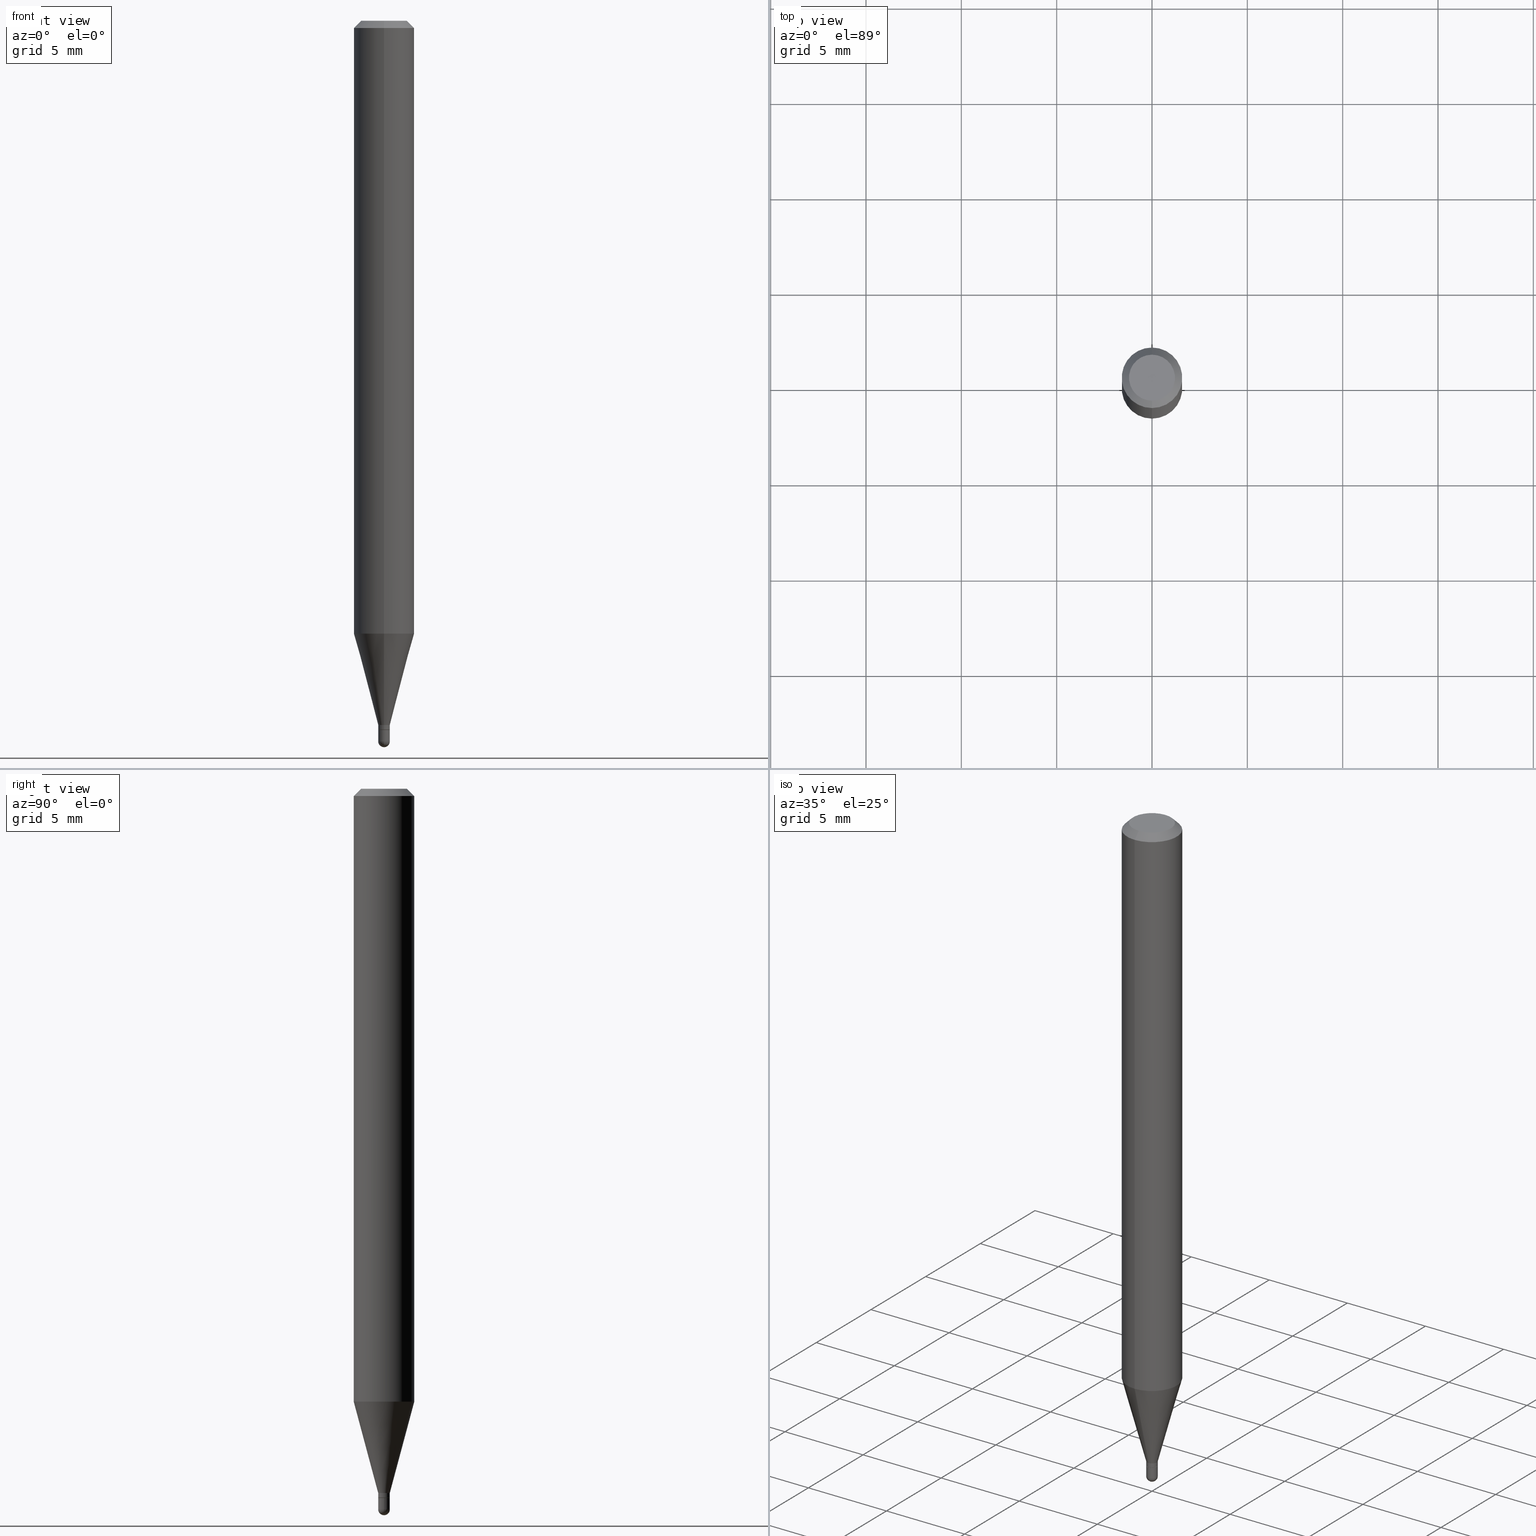
[diagram: canonical four-view strip — front | top / right | iso, engineering-drawing reading convention]
A machine part, canonical four-view strip (front | top / right | iso — engineering-drawing reading convention). The complete STEP part file that produces these views, byte-faithful:
ISO-10303-21;
HEADER;
FILE_DESCRIPTION (( 'STEP AP203' ),
    '1' );
FILE_NAME ('03085.STEP',
    '2024-03-08T18:08:15',
    ( '' ),
    ( '' ),
    'SwSTEP 2.0',
    'SolidWorks 2023',
    '' );
FILE_SCHEMA (( 'CONFIG_CONTROL_DESIGN' ));
ENDSEC;

DATA;
#1 = PRODUCT_DEFINITION_FORMATION_WITH_SPECIFIED_SOURCE ( 'ANY', '', #431, .NOT_KNOWN. ) ;
#2 = DIRECTION ( 'NONE',  ( -2.445468806185136597E-29, 3.491481338843145583E-15, 1.000000000000000000 ) ) ;
#3 = ORIENTED_EDGE ( 'NONE', *, *, #5, .T. ) ;
#4 = CYLINDRICAL_SURFACE ( 'NONE', #497, 0.06250000000000000000 ) ;
#5 = EDGE_CURVE ( 'NONE', #10, #282, #305, .T. ) ;
#6 = DIRECTION ( 'NONE',  ( -6.982962677686265922E-15, -1.000000000000000000, 4.370956789862821150E-15 ) ) ;
#7 = EDGE_LOOP ( 'NONE', ( #463, #452, #326, #308 ) ) ;
#8 = DIRECTION ( 'NONE',  ( -2.445468806185136877E-29, 3.491481338843145188E-15, 1.000000000000000000 ) ) ;
#9 = DIRECTION ( 'NONE',  ( -6.982962677686266711E-15, -1.000000000000000000, 0.000000000000000000 ) ) ;
#10 = VERTEX_POINT ( 'NONE', #510 ) ;
#11 = CARTESIAN_POINT ( 'NONE',  ( 3.637831384056468447E-29, -5.196793808357578073E-15, -1.487999999999999989 ) ) ;
#12 = FACE_OUTER_BOUND ( 'NONE', #222, .T. ) ;
#13 = CIRCLE ( 'NONE', #26, 0.01200000000000000198 ) ;
#14 = ADVANCED_FACE ( 'NONE', ( #193 ), #261, .F. ) ;
#15 = CARTESIAN_POINT ( 'NONE',  ( 3.555703072272141171E-29, -5.076626142156755697E-15, -1.453999999999999737 ) ) ;
#16 = CARTESIAN_POINT ( 'NONE',  ( -8.379555213219910077E-17, -0.01200000000000499972, -1.453999999999999737 ) ) ;
#17 = ORIENTED_EDGE ( 'NONE', *, *, #160, .F. ) ;
#18 = CARTESIAN_POINT ( 'NONE',  ( 3.578934969924538855E-29, -5.109795295080065026E-15, -1.463500000000000023 ) ) ;
#19 = CARTESIAN_POINT ( 'NONE',  ( 3.578934969924538855E-29, -5.109795295080065026E-15, -1.463500000000000023 ) ) ;
#20 = VERTEX_POINT ( 'NONE', #469 ) ;
#21 = DIRECTION ( 'NONE',  ( 1.000000000000000000, -6.982962677686251722E-15, 0.000000000000000000 ) ) ;
#22 = APPROVAL ( #72, 'UNSPECIFIED' ) ;
#23 = CARTESIAN_POINT ( 'NONE',  ( 3.668194366167900460E-31, -5.237234672101109478E-17, -0.01499999999999976179 ) ) ;
#24 = CARTESIAN_POINT ( 'NONE',  ( 0.01200000000000000025, -5.195324232198600513E-15, -1.463999999999999968 ) ) ;
#25 = CALENDAR_DATE ( 2024, 8, 3 ) ;
#26 = AXIS2_PLACEMENT_3D ( 'NONE', #325, #467, #119 ) ;
#27 = PERSON_AND_ORGANIZATION ( #249, #346 ) ;
#28 = ADVANCED_FACE ( 'NONE', ( #486 ), #319, .T. ) ;
#29 = PERSON_AND_ORGANIZATION_ROLE ( 'design_supplier' ) ;
#30 = ORIENTED_EDGE ( 'NONE', *, *, #407, .T. ) ;
#31 = AXIS2_PLACEMENT_3D ( 'NONE', #11, #158, #316 ) ;
#32 = LOCAL_TIME ( 13, 8, 15.00000000000000000, #104 ) ;
#33 = ORIENTED_EDGE ( 'NONE', *, *, #471, .F. ) ;
#34 = ORIENTED_EDGE ( 'NONE', *, *, #5, .F. ) ;
#35 = DIRECTION ( 'NONE',  ( -2.445462910778639321E-29, 3.491489781400795201E-15, 1.000000000000000000 ) ) ;
#36 = ORIENTED_EDGE ( 'NONE', *, *, #388, .F. ) ;
#37 = DIRECTION ( 'NONE',  ( -6.982962677686265922E-15, -1.000000000000000000, 0.000000000000000000 ) ) ;
#38 = EDGE_CURVE ( 'NONE', #20, #434, #323, .T. ) ;
#39 = CIRCLE ( 'NONE', #456, 0.01200000000000000198 ) ;
#40 = DIRECTION ( 'NONE',  ( -6.982962677686265922E-15, -1.000000000000000000, 3.491489781400795201E-15 ) ) ;
#41 = CARTESIAN_POINT ( 'NONE',  ( 3.637831384056468447E-29, -5.196793808357578073E-15, -1.487999999999999989 ) ) ;
#42 = EDGE_CURVE ( 'NONE', #427, #172, #490, .T. ) ;
#43 = DIRECTION ( 'NONE',  ( -6.982962677686265922E-15, -1.000000000000000000, 3.491489781400795201E-15 ) ) ;
#44 = CARTESIAN_POINT ( 'NONE',  ( 3.638857583603483825E-29, -5.195324232198600513E-15, -1.487999999999999989 ) ) ;
#45 = DIRECTION ( 'NONE',  ( 1.000000000000000000, -6.982962677686265922E-15, 4.883557194083112901E-29 ) ) ;
#46 = ORIENTED_EDGE ( 'NONE', *, *, #284, .F. ) ;
#47 = VECTOR ( 'NONE', #294, 39.37007874015748143 ) ;
#48 = CIRCLE ( 'NONE', #145, 0.06250000000000000000 ) ;
#49 = DIRECTION ( 'NONE',  ( -2.445462910778639602E-29, 3.491489781400795201E-15, 1.000000000000000000 ) ) ;
#50 = ADVANCED_FACE ( 'NONE', ( #203 ), #121, .T. ) ;
#51 = CARTESIAN_POINT ( 'NONE',  ( 3.668194366167900460E-31, -5.237234672101109478E-17, -0.01499999999999976179 ) ) ;
#52 = ORIENTED_EDGE ( 'NONE', *, *, #382, .F. ) ;
#53 = EDGE_CURVE ( 'NONE', #20, #10, #435, .T. ) ;
#54 = VECTOR ( 'NONE', #169, 39.37007874015748143 ) ;
#55 = AXIS2_PLACEMENT_3D ( 'NONE', #507, #424, #306 ) ;
#56 = DIRECTION ( 'NONE',  ( -2.445462910778639321E-29, 3.491489781400795201E-15, 1.000000000000000000 ) ) ;
#57 = CC_DESIGN_PERSON_AND_ORGANIZATION_ASSIGNMENT ( #509, #418, ( #431 ) ) ;
#58 = DIRECTION ( 'NONE',  ( -6.982962677686265922E-15, -1.000000000000000000, 3.483106191921935554E-15 ) ) ;
#59 = SECURITY_CLASSIFICATION_LEVEL ( 'unclassified' ) ;
#60 = EDGE_CURVE ( 'NONE', #489, #355, #278, .T. ) ;
#61 = CIRCLE ( 'NONE', #332, 0.01149999999999999981 ) ;
#62 = CC_DESIGN_SECURITY_CLASSIFICATION ( #155, ( #1 ) ) ;
#63 = DATE_AND_TIME ( #339, #32 ) ;
#64 = ORIENTED_EDGE ( 'NONE', *, *, #53, .F. ) ;
#65 = EDGE_CURVE ( 'NONE', #172, #440, #473, .T. ) ;
#66 =( CONVERSION_BASED_UNIT ( 'INCH', #421 ) LENGTH_UNIT ( ) NAMED_UNIT ( #420 ) );
#67 = ORIENTED_EDGE ( 'NONE', *, *, #160, .T. ) ;
#68 = ORIENTED_EDGE ( 'NONE', *, *, #474, .F. ) ;
#69 = AXIS2_PLACEMENT_3D ( 'NONE', #41, #476, #244 ) ;
#70 = EDGE_CURVE ( 'NONE', #365, #351, #214, .T. ) ;
#71 = CC_DESIGN_APPROVAL ( #287, ( #155 ) ) ;
#72 = APPROVAL_STATUS ( 'not_yet_approved' ) ;
#73 = CARTESIAN_POINT ( 'NONE',  ( 3.316907271900976096E-16, 0.04749999999999999362, -4.610124276185011717E-17 ) ) ;
#74 = COORDINATED_UNIVERSAL_TIME_OFFSET ( 5, 0, .BEHIND. ) ;
#75 = EDGE_CURVE ( 'NONE', #502, #257, #505, .T. ) ;
#76 = CARTESIAN_POINT ( 'NONE',  ( 3.668194366167900460E-31, -5.237234672101109478E-17, -0.01499999999999976179 ) ) ;
#77 = DIRECTION ( 'NONE',  ( -2.445462910778639321E-29, 3.491489781400795201E-15, 1.000000000000000000 ) ) ;
#78 = ORIENTED_EDGE ( 'NONE', *, *, #163, .T. ) ;
#79 = CARTESIAN_POINT ( 'NONE',  ( 3.638857583603483825E-29, -5.195324232198600513E-15, -1.487999999999999989 ) ) ;
#80 = APPLICATION_CONTEXT ( 'configuration controlled 3d designs of mechanical parts and assemblies' ) ;
#81 = CONICAL_SURFACE ( 'NONE', #425, 0.01149999999999999981, 0.7853981633974739252 ) ;
#82 = CARTESIAN_POINT ( 'NONE',  ( 3.555703072272141171E-29, -5.076626142156755697E-15, -1.453999999999999737 ) ) ;
#83 = DIRECTION ( 'NONE',  ( -2.445462910778639321E-29, 3.491489781400795201E-15, 1.000000000000000000 ) ) ;
#84 = DIRECTION ( 'NONE',  ( 6.982962677686265922E-15, 1.000000000000000000, -3.483106191921935554E-15 ) ) ;
#85 = VERTEX_POINT ( 'NONE', #480 ) ;
#86 = CYLINDRICAL_SURFACE ( 'NONE', #154, 0.01200000000000000198 ) ;
#87 = CARTESIAN_POINT ( 'NONE',  ( 3.638857583603483825E-29, -5.195324232198600513E-15, -1.487999999999999989 ) ) ;
#88 = ORIENTED_EDGE ( 'NONE', *, *, #60, .T. ) ;
#89 = DIRECTION ( 'NONE',  ( -1.807323732225329745E-15, -0.2588190451025181305, 0.9659258262890689783 ) ) ;
#90 = CONICAL_SURFACE ( 'NONE', #324, 0.06250000000000000000, 0.7853981633974483900 ) ;
#91 = ORIENTED_EDGE ( 'NONE', *, *, #407, .F. ) ;
#92 = CIRCLE ( 'NONE', #310, 0.06250000000000000000 ) ;
#93 = CARTESIAN_POINT ( 'NONE',  ( 3.666663909957182108E-29, -5.239426372503184123E-15, -1.499999999999999778 ) ) ;
#94 = ADVANCED_FACE ( 'NONE', ( #329 ), #86, .T. ) ;
#95 = DIRECTION ( 'NONE',  ( -6.982962677686265133E-15, -1.000000000000000000, 0.000000000000000000 ) ) ;
#96 = CARTESIAN_POINT ( 'NONE',  ( -4.364351673553606573E-16, -0.06250000000000442701, -1.265531434217771700 ) ) ;
#97 = CYLINDRICAL_SURFACE ( 'NONE', #208, 0.01200000000000000198 ) ;
#98 = CARTESIAN_POINT ( 'NONE',  ( 8.526512829124701746E-17, 0.01199999999999484465, -1.453999999999999737 ) ) ;
#99 = AXIS2_PLACEMENT_3D ( 'NONE', #204, #475, #43 ) ;
#100 = CONICAL_SURFACE ( 'NONE', #386, 0.01199999999999992219, 0.2617993877991502405 ) ;
#101 = DIRECTION ( 'NONE',  ( -2.445468806185136597E-29, 3.491481338843145583E-15, 1.000000000000000000 ) ) ;
#102 = CALENDAR_DATE ( 2024, 8, 3 ) ;
#103 = ADVANCED_FACE ( 'NONE', ( #401 ), #167, .T. ) ;
#104 = COORDINATED_UNIVERSAL_TIME_OFFSET ( 5, 0, .BEHIND. ) ;
#105 = CIRCLE ( 'NONE', #373, 0.01199999999999992219 ) ;
#106 = ORIENTED_EDGE ( 'NONE', *, *, #313, .T. ) ;
#107 = APPROVAL_DATE_TIME ( #464, #350 ) ;
#108 = CC_DESIGN_DATE_AND_TIME_ASSIGNMENT ( #342, #503, ( #149 ) ) ;
#109 = ADVANCED_FACE ( 'NONE', ( #366 ), #4, .T. ) ;
#110 = ORIENTED_EDGE ( 'NONE', *, *, #140, .T. ) ;
#111 = EDGE_CURVE ( 'NONE', #264, #489, #327, .T. ) ;
#112 = EDGE_LOOP ( 'NONE', ( #68, #170, #237, #141 ) ) ;
#113 = PERSON_AND_ORGANIZATION ( #249, #346 ) ;
#114 = ORIENTED_EDGE ( 'NONE', *, *, #376, .F. ) ;
#115 = CLOSED_SHELL ( 'NONE', ( #223, #174, #210, #500, #352, #103, #109, #442, #14, #511, #492, #50 ) ) ;
#116 = DIRECTION ( 'NONE',  ( -2.445462910778639602E-29, 3.491489781400795201E-15, 1.000000000000000000 ) ) ;
#117 = DIRECTION ( 'NONE',  ( -6.982962677686266711E-15, -1.000000000000000000, 3.491489781400794412E-15 ) ) ;
#118 = DIRECTION ( 'NONE',  ( 1.000000000000000000, -7.105427357601001070E-15, 4.926315508542082329E-29 ) ) ;
#119 = DIRECTION ( 'NONE',  ( 1.000000000000000000, -6.982962677686250144E-15, 0.000000000000000000 ) ) ;
#120 = ORIENTED_EDGE ( 'NONE', *, *, #38, .T. ) ;
#121 = CYLINDRICAL_SURFACE ( 'NONE', #394, 0.01199999999999992566 ) ;
#122 = CIRCLE ( 'NONE', #273, 0.01199999999999992566 ) ;
#123 = CIRCLE ( 'NONE', #190, 0.01199999999999992566 ) ;
#124 = DIRECTION ( 'NONE',  ( -2.445468806185136597E-29, 3.491481338843145583E-15, 1.000000000000000000 ) ) ;
#125 = DIRECTION ( 'NONE',  ( 1.000000000000000000, -6.982962677686250144E-15, 0.000000000000000000 ) ) ;
#126 = CARTESIAN_POINT ( 'NONE',  ( 3.580157701379928029E-29, -5.111541039970764852E-15, -1.463999999999999968 ) ) ;
#127 = EDGE_LOOP ( 'NONE', ( #64, #229 ) ) ;
#128 = CARTESIAN_POINT ( 'NONE',  ( -8.030407079335625387E-17, -0.01150000000000511204, -1.463999999999999968 ) ) ;
#129 = LINE ( 'NONE', #135, #498 ) ;
#130 = ORIENTED_EDGE ( 'NONE', *, *, #279, .T. ) ;
#131 = CARTESIAN_POINT ( 'NONE',  ( 0.01200000000000000198, -8.379555213223521581E-17, 5.851412130955123337E-31 ) ) ;
#132 = EDGE_CURVE ( 'NONE', #459, #427, #175, .T. ) ;
#133 = DIRECTION ( 'NONE',  ( 4.937700262164548042E-15, 0.7071067811865451302, -0.7071067811865499042 ) ) ;
#134 = DIRECTION ( 'NONE',  ( -6.982962677686265922E-15, -1.000000000000000000, 0.000000000000000000 ) ) ;
#135 = CARTESIAN_POINT ( 'NONE',  ( 4.364351673553919652E-16, 0.06249999999999995143, -0.01499999999999997863 ) ) ;
#136 = CARTESIAN_POINT ( 'NONE',  ( 4.440892098500932831E-16, 0.06249999999999555911, -1.265531434217772144 ) ) ;
#137 = AXIS2_PLACEMENT_3D ( 'NONE', #15, #286, #206 ) ;
#138 = LOCAL_TIME ( 13, 8, 15.00000000000000000, #260 ) ;
#139 =( NAMED_UNIT ( * ) PLANE_ANGLE_UNIT ( ) SI_UNIT ( $, .RADIAN. ) );
#140 = EDGE_CURVE ( 'NONE', #459, #243, #232, .T. ) ;
#141 = ORIENTED_EDGE ( 'NONE', *, *, #376, .T. ) ;
#142 = PERSON_AND_ORGANIZATION_ROLE ( 'creator' ) ;
#143 = VECTOR ( 'NONE', #173, 39.37007874015748143 ) ;
#144 = ORIENTED_EDGE ( 'NONE', *, *, #483, .T. ) ;
#145 = AXIS2_PLACEMENT_3D ( 'NONE', #51, #455, #58 ) ;
#146 = APPROVAL_ROLE ( '' ) ;
#147 = EDGE_LOOP ( 'NONE', ( #194, #301 ) ) ;
#148 = APPLICATION_CONTEXT ( 'configuration controlled 3d designs of mechanical parts and assemblies' ) ;
#149 = PRODUCT_DEFINITION ( 'UNKNOWN', '', #1, #180 ) ;
#150 = ADVANCED_BREP_SHAPE_REPRESENTATION ( '03085', ( #417, #438, #55 ), #449 ) ;
#151 = ORIENTED_EDGE ( 'NONE', *, *, #132, .T. ) ;
#152 = PERSON_AND_ORGANIZATION ( #249, #346 ) ;
#153 = DIRECTION ( 'NONE',  ( 5.024295867788190974E-15, 0.7071067811865681119, 0.7071067811865270336 ) ) ;
#154 = AXIS2_PLACEMENT_3D ( 'NONE', #238, #241, #162 ) ;
#155 = SECURITY_CLASSIFICATION ( '', '', #59 ) ;
#156 = DIRECTION ( 'NONE',  ( -2.445462910778639321E-29, 3.491489781400795201E-15, 1.000000000000000000 ) ) ;
#157 = EDGE_LOOP ( 'NONE', ( #393, #290 ) ) ;
#158 = DIRECTION ( 'NONE',  ( -1.000000000000000000, 6.982962677686265922E-15, -4.883557194083112340E-29 ) ) ;
#159 = APPROVAL_DATE_TIME ( #197, #287 ) ;
#160 = EDGE_CURVE ( 'NONE', #434, #282, #122, .T. ) ;
#161 = FACE_OUTER_BOUND ( 'NONE', #189, .T. ) ;
#162 = DIRECTION ( 'NONE',  ( 1.000000000000000000, -6.982962677686266711E-15, 4.876176775795935232E-29 ) ) ;
#163 = EDGE_CURVE ( 'NONE', #365, #427, #251, .T. ) ;
#164 = DIRECTION ( 'NONE',  ( -6.982962677686265922E-15, -1.000000000000000000, 0.000000000000000000 ) ) ;
#165 = ORIENTED_EDGE ( 'NONE', *, *, #271, .F. ) ;
#166 = FACE_OUTER_BOUND ( 'NONE', #389, .T. ) ;
#167 = CONICAL_SURFACE ( 'NONE', #137, 0.01199999999999992219, 0.2617993877991502405 ) ;
#168 = CIRCLE ( 'NONE', #357, 0.06250000000000000000 ) ;
#169 = DIRECTION ( 'NONE',  ( -2.445462910778639602E-29, 3.491489781400795201E-15, 1.000000000000000000 ) ) ;
#170 = ORIENTED_EDGE ( 'NONE', *, *, #75, .F. ) ;
#171 = DIRECTION ( 'NONE',  ( -6.982962677686265922E-15, -1.000000000000000000, 3.491489781400795201E-15 ) ) ;
#172 = VERTEX_POINT ( 'NONE', #396 ) ;
#173 = DIRECTION ( 'NONE',  ( -4.937700262164674260E-15, -0.7071067811865632269, 0.7071067811865319186 ) ) ;
#174 = ADVANCED_FACE ( 'NONE', ( #166 ), #81, .T. ) ;
#175 = CIRCLE ( 'NONE', #196, 0.01200000000000000198 ) ;
#176 = FACE_OUTER_BOUND ( 'NONE', #112, .T. ) ;
#177 = AXIS2_PLACEMENT_3D ( 'NONE', #451, #408, #496 ) ;
#178 = EDGE_CURVE ( 'NONE', #349, #485, #494, .T. ) ;
#179 = DIRECTION ( 'NONE',  ( -2.445468806185136597E-29, 3.491481338843145583E-15, 1.000000000000000000 ) ) ;
#180 = DESIGN_CONTEXT ( 'detailed design', #148, 'design' ) ;
#181 = CARTESIAN_POINT ( 'NONE',  ( 3.580166332255040005E-29, -5.111528680066365187E-15, -1.463999999999999968 ) ) ;
#182 = DATE_AND_TIME ( #25, #253 ) ;
#183 = AXIS2_PLACEMENT_3D ( 'NONE', #443, #397, #318 ) ;
#184 = PERSON_AND_ORGANIZATION_ROLE ( 'classification_officer' ) ;
#185 = EDGE_LOOP ( 'NONE', ( #130, #110, #444, #341, #106 ) ) ;
#186 = APPLICATION_PROTOCOL_DEFINITION ( 'international standard', 'config_control_design', 1994, #80 ) ;
#187 = ORIENTED_EDGE ( 'NONE', *, *, #361, .F. ) ;
#188 = PERSON_AND_ORGANIZATION ( #249, #346 ) ;
#189 = EDGE_LOOP ( 'NONE', ( #403, #423, #33, #315 ) ) ;
#190 = AXIS2_PLACEMENT_3D ( 'NONE', #19, #254, #134 ) ;
#191 = CARTESIAN_POINT ( 'NONE',  ( 8.171241461244731456E-17, 0.01149999999999488931, -1.463999999999999968 ) ) ;
#192 = ADVANCED_FACE ( 'NONE', ( #412 ), #307, .F. ) ;
#193 = FACE_OUTER_BOUND ( 'NONE', #147, .T. ) ;
#194 = ORIENTED_EDGE ( 'NONE', *, *, #75, .T. ) ;
#195 = DIRECTION ( 'NONE',  ( -6.982962677686265133E-15, -1.000000000000000000, 0.000000000000000000 ) ) ;
#196 = AXIS2_PLACEMENT_3D ( 'NONE', #79, #399, #283 ) ;
#197 = DATE_AND_TIME ( #470, #220 ) ;
#198 = CARTESIAN_POINT ( 'NONE',  ( 8.526512829124797888E-17, 0.01199999999999474751, -1.487999999999999989 ) ) ;
#199 = ORIENTED_EDGE ( 'NONE', *, *, #322, .T. ) ;
#200 = DIRECTION ( 'NONE',  ( -2.445468806185136597E-29, 3.491481338843145583E-15, 1.000000000000000000 ) ) ;
#201 = LINE ( 'NONE', #390, #54 ) ;
#202 = ORIENTED_EDGE ( 'NONE', *, *, #292, .F. ) ;
#203 = FACE_OUTER_BOUND ( 'NONE', #446, .T. ) ;
#204 = CARTESIAN_POINT ( 'NONE',  ( 0.000000000000000000, 0.000000000000000000, 0.000000000000000000 ) ) ;
#205 = ORIENTED_EDGE ( 'NONE', *, *, #292, .T. ) ;
#206 = DIRECTION ( 'NONE',  ( -6.982962677686266711E-15, -1.000000000000000000, 0.000000000000000000 ) ) ;
#207 = AXIS2_PLACEMENT_3D ( 'NONE', #44, #200, #125 ) ;
#208 = AXIS2_PLACEMENT_3D ( 'NONE', #377, #179, #453 ) ;
#209 = CARTESIAN_POINT ( 'NONE',  ( -0.01200000000000000025, -5.068161327841269963E-15, -1.463999999999999968 ) ) ;
#210 = ADVANCED_FACE ( 'NONE', ( #309 ), #90, .T. ) ;
#211 = DIRECTION ( 'NONE',  ( -6.982962677686266711E-15, -1.000000000000000000, 3.491489781400794412E-15 ) ) ;
#212 = DIRECTION ( 'NONE',  ( -2.445462910778639321E-29, 3.491489781400795201E-15, 1.000000000000000000 ) ) ;
#213 = EDGE_CURVE ( 'NONE', #257, #502, #466, .T. ) ;
#214 = CIRCLE ( 'NONE', #405, 0.01199999999999988229 ) ;
#215 = FACE_OUTER_BOUND ( 'NONE', #347, .T. ) ;
#216 = DIRECTION ( 'NONE',  ( -2.445462910778639321E-29, 3.491489781400795201E-15, 1.000000000000000000 ) ) ;
#217 = DIRECTION ( 'NONE',  ( -6.982962677686265922E-15, -1.000000000000000000, 3.491489781400795201E-15 ) ) ;
#218 = FACE_OUTER_BOUND ( 'NONE', #127, .T. ) ;
#219 =( NAMED_UNIT ( * ) SI_UNIT ( $, .STERADIAN. ) SOLID_ANGLE_UNIT ( ) );
#220 = LOCAL_TIME ( 13, 8, 15.00000000000000000, #74 ) ;
#221 = CC_DESIGN_DATE_AND_TIME_ASSIGNMENT ( #63, #258, ( #155 ) ) ;
#222 = EDGE_LOOP ( 'NONE', ( #67, #400, #384, #202 ) ) ;
#223 = ADVANCED_FACE ( 'NONE', ( #12 ), #275, .T. ) ;
#224 =( LENGTH_UNIT ( ) NAMED_UNIT ( * ) SI_UNIT ( $, .METRE. ) );
#225 = VECTOR ( 'NONE', #116, 39.37007874015748143 ) ;
#226 = EDGE_LOOP ( 'NONE', ( #409, #78, #276, #372 ) ) ;
#227 = AXIS2_PLACEMENT_3D ( 'NONE', #501, #344, #300 ) ;
#228 = PRODUCT_DEFINITION_SHAPE ( 'NONE', 'NONE',  #149 ) ;
#229 = ORIENTED_EDGE ( 'NONE', *, *, #322, .F. ) ;
#230 = CARTESIAN_POINT ( 'NONE',  ( 3.580166332255040005E-29, -5.111528680066365187E-15, -1.463999999999999968 ) ) ;
#231 = EDGE_CURVE ( 'NONE', #440, #243, #235, .T. ) ;
#232 = LINE ( 'NONE', #482, #311 ) ;
#233 = CARTESIAN_POINT ( 'NONE',  ( 3.555703072272141171E-29, -5.076626142156755697E-15, -1.453999999999999737 ) ) ;
#234 = ORIENTED_EDGE ( 'NONE', *, *, #471, .T. ) ;
#235 = CIRCLE ( 'NONE', #385, 0.01200000000000000025 ) ;
#236 = DIRECTION ( 'NONE',  ( -2.445462910778639321E-29, 3.491489781400795201E-15, 1.000000000000000000 ) ) ;
#237 = ORIENTED_EDGE ( 'NONE', *, *, #388, .T. ) ;
#238 = CARTESIAN_POINT ( 'NONE',  ( 0.000000000000000000, 0.000000000000000000, 0.000000000000000000 ) ) ;
#239 = CARTESIAN_POINT ( 'NONE',  ( -4.364351673553912750E-16, -0.06250000000000005551, -0.01499999999999954321 ) ) ;
#240 = ORIENTED_EDGE ( 'NONE', *, *, #213, .F. ) ;
#241 = DIRECTION ( 'NONE',  ( -2.445468806185136597E-29, 3.491481338843145583E-15, 1.000000000000000000 ) ) ;
#242 = CARTESIAN_POINT ( 'NONE',  ( 8.526512829124698048E-17, 0.01199999999999477526, -1.463500000000000023 ) ) ;
#243 = VERTEX_POINT ( 'NONE', #209 ) ;
#244 = DIRECTION ( 'NONE',  ( -6.982962677686265922E-15, -1.000000000000000000, 0.000000000000000000 ) ) ;
#245 = CC_DESIGN_PERSON_AND_ORGANIZATION_ASSIGNMENT ( #302, #29, ( #1 ) ) ;
#246 = CIRCLE ( 'NONE', #288, 0.01199999999999992219 ) ;
#247 = ORIENTED_EDGE ( 'NONE', *, *, #42, .F. ) ;
#248 = LINE ( 'NONE', #411, #506 ) ;
#249 = PERSON ( 'UNSPECIFIED', 'UNSPECIFIED', 'UNSPECIFIED', ('UNSPECIFIED'), ('UNSPECIFIED'), ('UNSPECIFIED') ) ;
#250 = CARTESIAN_POINT ( 'NONE',  ( -8.379555213219913775E-17, -0.01200000000000507432, -1.463500000000000023 ) ) ;
#251 = CIRCLE ( 'NONE', #31, 0.01199999999999988229 ) ;
#252 = FACE_OUTER_BOUND ( 'NONE', #331, .T. ) ;
#253 = LOCAL_TIME ( 13, 8, 15.00000000000000000, #383 ) ;
#254 = DIRECTION ( 'NONE',  ( -2.445462910778639321E-29, 3.491489781400795201E-15, 1.000000000000000000 ) ) ;
#255 = PERSON_AND_ORGANIZATION_ROLE ( 'creator' ) ;
#256 = VECTOR ( 'NONE', #8, 39.37007874015748143 ) ;
#257 = VERTEX_POINT ( 'NONE', #369 ) ;
#258 = DATE_TIME_ROLE ( 'classification_date' ) ;
#259 = ORIENTED_EDGE ( 'NONE', *, *, #313, .F. ) ;
#260 = COORDINATED_UNIVERSAL_TIME_OFFSET ( 5, 0, .BEHIND. ) ;
#261 = PLANE ( 'NONE',  #296 ) ;
#262 = CALENDAR_DATE ( 2024, 8, 3 ) ;
#263 = VECTOR ( 'NONE', #153, 39.37007874015748143 ) ;
#264 = VERTEX_POINT ( 'NONE', #16 ) ;
#265 = CONICAL_SURFACE ( 'NONE', #395, 0.06250000000000000000, 0.7853981633974483900 ) ;
#266 = CARTESIAN_POINT ( 'NONE',  ( 2.646771690706703907E-16, 0.01199999999999484465, -1.453999999999999737 ) ) ;
#267 = LINE ( 'NONE', #481, #225 ) ;
#268 = DIRECTION ( 'NONE',  ( -2.445462910778639321E-29, 3.491489781400795201E-15, 1.000000000000000000 ) ) ;
#269 = DIRECTION ( 'NONE',  ( -2.445462910778639321E-29, 3.491489781400795201E-15, 1.000000000000000000 ) ) ;
#270 = EDGE_LOOP ( 'NONE', ( #304, #151, #422, #504, #187 ) ) ;
#271 = EDGE_CURVE ( 'NONE', #349, #264, #246, .T. ) ;
#272 = DIRECTION ( 'NONE',  ( -2.445462910778639321E-29, 3.491489781400795201E-15, 1.000000000000000000 ) ) ;
#273 = AXIS2_PLACEMENT_3D ( 'NONE', #18, #391, #37 ) ;
#274 = AXIS2_PLACEMENT_3D ( 'NONE', #414, #56, #217 ) ;
#275 = CYLINDRICAL_SURFACE ( 'NONE', #99, 0.01199999999999992566 ) ;
#276 = ORIENTED_EDGE ( 'NONE', *, *, #132, .F. ) ;
#277 = CC_DESIGN_PERSON_AND_ORGANIZATION_ASSIGNMENT ( #113, #255, ( #149 ) ) ;
#278 = LINE ( 'NONE', #358, #337 ) ;
#279 = EDGE_CURVE ( 'NONE', #351, #459, #39, .T. ) ;
#280 = APPROVAL_STATUS ( 'not_yet_approved' ) ;
#281 = DIRECTION ( 'NONE',  ( 2.445462910778639321E-29, -3.491489781400795201E-15, -1.000000000000000000 ) ) ;
#282 = VERTEX_POINT ( 'NONE', #242 ) ;
#283 = DIRECTION ( 'NONE',  ( 1.000000000000000000, -6.982962677686250144E-15, 0.000000000000000000 ) ) ;
#284 = EDGE_CURVE ( 'NONE', #282, #349, #201, .T. ) ;
#285 = CARTESIAN_POINT ( 'NONE',  ( -8.379555213219839819E-17, -0.01200000000000513677, -1.487999999999999989 ) ) ;
#286 = DIRECTION ( 'NONE',  ( -2.445462910778639321E-29, 3.491489781400795201E-15, 1.000000000000000000 ) ) ;
#287 = APPROVAL ( #280, 'UNSPECIFIED' ) ;
#288 = AXIS2_PLACEMENT_3D ( 'NONE', #477, #156, #364 ) ;
#289 = CARTESIAN_POINT ( 'NONE',  ( 4.440892098500625669E-16, 0.06250000000000000000, -2.182181113375497001E-16 ) ) ;
#290 = ORIENTED_EDGE ( 'NONE', *, *, #361, .T. ) ;
#291 = CARTESIAN_POINT ( 'NONE',  ( 3.580157701379928029E-29, -5.111541039970764852E-15, -1.463999999999999968 ) ) ;
#292 = EDGE_CURVE ( 'NONE', #434, #264, #267, .T. ) ;
#293 = FACE_OUTER_BOUND ( 'NONE', #270, .T. ) ;
#294 = DIRECTION ( 'NONE',  ( 1.839019923739599921E-15, 0.2588190451025249028, 0.9659258262890670910 ) ) ;
#295 = DIRECTION ( 'NONE',  ( -2.445462910778639602E-29, 3.491489781400795201E-15, 1.000000000000000000 ) ) ;
#296 = AXIS2_PLACEMENT_3D ( 'NONE', #73, #512, #312 ) ;
#297 = DIRECTION ( 'NONE',  ( -2.445462910778639321E-29, 3.491489781400795201E-15, 1.000000000000000000 ) ) ;
#298 = APPROVAL_PERSON_ORGANIZATION ( #152, #287, #432 ) ;
#299 = APPROVAL_ROLE ( '' ) ;
#300 = DIRECTION ( 'NONE',  ( -6.982962677686265922E-15, -1.000000000000000000, 3.491489781400795201E-15 ) ) ;
#301 = ORIENTED_EDGE ( 'NONE', *, *, #213, .T. ) ;
#302 = PERSON_AND_ORGANIZATION ( #249, #346 ) ;
#303 = AXIS2_PLACEMENT_3D ( 'NONE', #392, #45, #164 ) ;
#304 = ORIENTED_EDGE ( 'NONE', *, *, #140, .F. ) ;
#305 = LINE ( 'NONE', #191, #263 ) ;
#306 = DIRECTION ( 'NONE',  ( 1.000000000000000000, 0.000000000000000000, 0.000000000000000000 ) ) ;
#307 = PLANE ( 'NONE',  #183 ) ;
#308 = ORIENTED_EDGE ( 'NONE', *, *, #317, .F. ) ;
#309 = FACE_OUTER_BOUND ( 'NONE', #472, .T. ) ;
#310 = AXIS2_PLACEMENT_3D ( 'NONE', #314, #35, #6 ) ;
#311 = VECTOR ( 'NONE', #371, 39.37007874015748143 ) ;
#312 = DIRECTION ( 'NONE',  ( 6.982962677686265922E-15, 1.000000000000000000, -3.491489781400795201E-15 ) ) ;
#313 = EDGE_CURVE ( 'NONE', #172, #351, #13, .T. ) ;
#314 = CARTESIAN_POINT ( 'NONE',  ( 3.094810184804058923E-29, -4.418590070612843817E-15, -1.265531434217771922 ) ) ;
#315 = ORIENTED_EDGE ( 'NONE', *, *, #111, .F. ) ;
#316 = DIRECTION ( 'NONE',  ( -6.982962677686265922E-15, -1.000000000000000000, 0.000000000000000000 ) ) ;
#317 = EDGE_CURVE ( 'NONE', #485, #489, #92, .T. ) ;
#318 = DIRECTION ( 'NONE',  ( -1.000000000000000000, 6.982962677686265922E-15, -4.876176775795935793E-29 ) ) ;
#319 = SPHERICAL_SURFACE ( 'NONE', #69, 0.01199999999999988229 ) ;
#320 = DIRECTION ( 'NONE',  ( -6.982962677686265133E-15, -1.000000000000000000, 0.000000000000000000 ) ) ;
#321 = EDGE_LOOP ( 'NONE', ( #91, #419, #88, #114 ) ) ;
#322 = EDGE_CURVE ( 'NONE', #10, #20, #61, .T. ) ;
#323 = LINE ( 'NONE', #128, #143 ) ;
#324 = AXIS2_PLACEMENT_3D ( 'NONE', #76, #281, #84 ) ;
#325 = CARTESIAN_POINT ( 'NONE',  ( 3.638857583603483825E-29, -5.195324232198600513E-15, -1.487999999999999989 ) ) ;
#326 = ORIENTED_EDGE ( 'NONE', *, *, #111, .T. ) ;
#327 = LINE ( 'NONE', #447, #345 ) ;
#328 = EDGE_CURVE ( 'NONE', #264, #349, #105, .T. ) ;
#329 = FACE_OUTER_BOUND ( 'NONE', #185, .T. ) ;
#330 = DIRECTION ( 'NONE',  ( 2.445462910778639321E-29, -3.491489781400795201E-15, -1.000000000000000000 ) ) ;
#331 = EDGE_LOOP ( 'NONE', ( #234, #30, #508, #398 ) ) ;
#332 = AXIS2_PLACEMENT_3D ( 'NONE', #126, #77, #320 ) ;
#333 = ADVANCED_FACE ( 'NONE', ( #439 ), #402, .T. ) ;
#334 = CARTESIAN_POINT ( 'NONE',  ( -0.01200000000000000198, -5.068161327841269963E-15, -1.487999999999999989 ) ) ;
#335 = DIRECTION ( 'NONE',  ( -6.982962677686265133E-15, -1.000000000000000000, 0.000000000000000000 ) ) ;
#336 = LINE ( 'NONE', #289, #491 ) ;
#337 = VECTOR ( 'NONE', #49, 39.37007874015748143 ) ;
#338 = APPROVAL_STATUS ( 'not_yet_approved' ) ;
#339 = CALENDAR_DATE ( 2024, 8, 3 ) ;
#340 = PRODUCT_RELATED_PRODUCT_CATEGORY ( 'detail', '', ( #431 ) ) ;
#341 = ORIENTED_EDGE ( 'NONE', *, *, #65, .F. ) ;
#342 = DATE_AND_TIME ( #262, #468 ) ;
#343 = ORIENTED_EDGE ( 'NONE', *, *, #474, .T. ) ;
#344 = DIRECTION ( 'NONE',  ( -2.445462910778639041E-29, 3.491489781400795201E-15, 1.000000000000000000 ) ) ;
#345 = VECTOR ( 'NONE', #89, 39.37007874015748143 ) ;
#346 = ORGANIZATION ( 'UNSPECIFIED', 'UNSPECIFIED', '' ) ;
#347 = EDGE_LOOP ( 'NONE', ( #34, #199, #120, #52 ) ) ;
#348 = MECHANICAL_CONTEXT ( 'NONE', #80, 'mechanical' ) ;
#349 = VERTEX_POINT ( 'NONE', #266 ) ;
#350 = APPROVAL ( #338, 'UNSPECIFIED' ) ;
#351 = VERTEX_POINT ( 'NONE', #198 ) ;
#352 = ADVANCED_FACE ( 'NONE', ( #161 ), #100, .T. ) ;
#353 = SHAPE_DEFINITION_REPRESENTATION ( #228, #150 ) ;
#354 = DIRECTION ( 'NONE',  ( 1.000000000000000000, -6.982962677686251722E-15, 0.000000000000000000 ) ) ;
#355 = VERTEX_POINT ( 'NONE', #239 ) ;
#356 = AXIS2_PLACEMENT_3D ( 'NONE', #437, #404, #195 ) ;
#357 = AXIS2_PLACEMENT_3D ( 'NONE', #406, #212, #484 ) ;
#358 = CARTESIAN_POINT ( 'NONE',  ( -4.364351673553916201E-16, -0.06250000000000000000, 2.182181113375497001E-16 ) ) ;
#359 = CARTESIAN_POINT ( 'NONE',  ( -5.856615739291216554E-45, 8.361735488687322193E-31, 2.394890437093752876E-16 ) ) ;
#360 = CARTESIAN_POINT ( 'NONE',  ( 0.000000000000000000, 0.000000000000000000, 0.000000000000000000 ) ) ;
#361 = EDGE_CURVE ( 'NONE', #243, #440, #479, .T. ) ;
#362 = DIRECTION ( 'NONE',  ( -2.445462910778639321E-29, 3.491489781400795201E-15, 1.000000000000000000 ) ) ;
#363 = CARTESIAN_POINT ( 'NONE',  ( -5.856615739291216554E-45, 8.361735488687322193E-31, 2.394890437093752876E-16 ) ) ;
#364 = DIRECTION ( 'NONE',  ( -6.982962677686266711E-15, -1.000000000000000000, 0.000000000000000000 ) ) ;
#365 = VERTEX_POINT ( 'NONE', #93 ) ;
#366 = FACE_OUTER_BOUND ( 'NONE', #321, .T. ) ;
#367 = AXIS2_PLACEMENT_3D ( 'NONE', #363, #83, #211 ) ;
#368 = AXIS2_PLACEMENT_3D ( 'NONE', #181, #101, #21 ) ;
#369 = CARTESIAN_POINT ( 'NONE',  ( -3.773273898774340269E-16, -0.04749999999999999362, 4.053348083259130054E-16 ) ) ;
#370 = ORIENTED_EDGE ( 'NONE', *, *, #163, .F. ) ;
#371 = DIRECTION ( 'NONE',  ( -2.445468806185136877E-29, 3.491481338843145188E-15, 1.000000000000000000 ) ) ;
#372 = ORIENTED_EDGE ( 'NONE', *, *, #279, .F. ) ;
#373 = AXIS2_PLACEMENT_3D ( 'NONE', #233, #362, #433 ) ;
#374 = CIRCLE ( 'NONE', #177, 0.06250000000000000000 ) ;
#375 = CARTESIAN_POINT ( 'NONE',  ( 3.580157701379928029E-29, -5.111541039970764852E-15, -1.463999999999999968 ) ) ;
#376 = EDGE_CURVE ( 'NONE', #85, #355, #168, .T. ) ;
#377 = CARTESIAN_POINT ( 'NONE',  ( 0.000000000000000000, 0.000000000000000000, 0.000000000000000000 ) ) ;
#378 = PLANE ( 'NONE',  #227 ) ;
#379 = AXIS2_PLACEMENT_3D ( 'NONE', #359, #269, #117 ) ;
#380 = APPROVAL_PERSON_ORGANIZATION ( #458, #350, #146 ) ;
#381 = COORDINATED_UNIVERSAL_TIME_OFFSET ( 5, 0, .BEHIND. ) ;
#382 = EDGE_CURVE ( 'NONE', #282, #434, #123, .T. ) ;
#383 = COORDINATED_UNIVERSAL_TIME_OFFSET ( 5, 0, .BEHIND. ) ;
#384 = ORIENTED_EDGE ( 'NONE', *, *, #328, .F. ) ;
#385 = AXIS2_PLACEMENT_3D ( 'NONE', #230, #2, #354 ) ;
#386 = AXIS2_PLACEMENT_3D ( 'NONE', #82, #236, #9 ) ;
#387 = ORIENTED_EDGE ( 'NONE', *, *, #382, .T. ) ;
#388 = EDGE_CURVE ( 'NONE', #502, #85, #129, .T. ) ;
#389 = EDGE_LOOP ( 'NONE', ( #461, #3, #17, #429 ) ) ;
#390 = CARTESIAN_POINT ( 'NONE',  ( 8.526512829121146941E-17, 0.01199999999999992566, -4.189787737680928135E-17 ) ) ;
#391 = DIRECTION ( 'NONE',  ( -2.445462910778639321E-29, 3.491489781400795201E-15, 1.000000000000000000 ) ) ;
#392 = CARTESIAN_POINT ( 'NONE',  ( 3.637831384056468447E-29, -5.196793808357578073E-15, -1.487999999999999989 ) ) ;
#393 = ORIENTED_EDGE ( 'NONE', *, *, #231, .T. ) ;
#394 = AXIS2_PLACEMENT_3D ( 'NONE', #360, #272, #40 ) ;
#395 = AXIS2_PLACEMENT_3D ( 'NONE', #23, #330, #488 ) ;
#396 = CARTESIAN_POINT ( 'NONE',  ( 0.01200000000000000198, -5.237222008264718177E-15, -1.487999999999999989 ) ) ;
#397 = DIRECTION ( 'NONE',  ( 2.438088387897960049E-29, -3.491481338843145188E-15, -1.000000000000000000 ) ) ;
#398 = ORIENTED_EDGE ( 'NONE', *, *, #60, .F. ) ;
#399 = DIRECTION ( 'NONE',  ( -2.445468806185136597E-29, 3.491481338843145583E-15, 1.000000000000000000 ) ) ;
#400 = ORIENTED_EDGE ( 'NONE', *, *, #284, .T. ) ;
#401 = FACE_OUTER_BOUND ( 'NONE', #7, .T. ) ;
#402 = SPHERICAL_SURFACE ( 'NONE', #303, 0.01199999999999988229 ) ;
#403 = ORIENTED_EDGE ( 'NONE', *, *, #328, .T. ) ;
#404 = DIRECTION ( 'NONE',  ( -2.445462910778639321E-29, 3.491489781400795201E-15, 1.000000000000000000 ) ) ;
#405 = AXIS2_PLACEMENT_3D ( 'NONE', #445, #118, #441 ) ;
#406 = CARTESIAN_POINT ( 'NONE',  ( 3.668194366167900460E-31, -5.237234672101109478E-17, -0.01499999999999976179 ) ) ;
#407 = EDGE_CURVE ( 'NONE', #485, #85, #336, .T. ) ;
#408 = DIRECTION ( 'NONE',  ( -2.445462910778639321E-29, 3.491489781400795201E-15, 1.000000000000000000 ) ) ;
#409 = ORIENTED_EDGE ( 'NONE', *, *, #70, .F. ) ;
#410 = CC_DESIGN_PERSON_AND_ORGANIZATION_ASSIGNMENT ( #416, #142, ( #1 ) ) ;
#411 = CARTESIAN_POINT ( 'NONE',  ( -4.287811248607203282E-16, -0.06250000000000005551, -0.01499999999999954321 ) ) ;
#412 = FACE_OUTER_BOUND ( 'NONE', #157, .T. ) ;
#413 = CC_DESIGN_APPROVAL ( #22, ( #1 ) ) ;
#414 = CARTESIAN_POINT ( 'NONE',  ( 0.000000000000000000, 0.000000000000000000, 0.000000000000000000 ) ) ;
#415 = CARTESIAN_POINT ( 'NONE',  ( 3.840629472727447874E-16, 0.04749999999999999362, 7.364327909283752044E-17 ) ) ;
#416 = PERSON_AND_ORGANIZATION ( #249, #346 ) ;
#417 = MANIFOLD_SOLID_BREP ( 'Body-Move/Copy2[1]', #448 ) ;
#418 = PERSON_AND_ORGANIZATION_ROLE ( 'design_owner' ) ;
#419 = ORIENTED_EDGE ( 'NONE', *, *, #317, .T. ) ;
#420 = DIMENSIONAL_EXPONENTS ( 1.000000000000000000, 0.000000000000000000, 0.000000000000000000, 0.000000000000000000, 0.000000000000000000, 0.000000000000000000, 0.000000000000000000 ) ;
#421 = LENGTH_MEASURE_WITH_UNIT ( LENGTH_MEASURE( 0.02539999999999999897 ), #224 );
#422 = ORIENTED_EDGE ( 'NONE', *, *, #42, .T. ) ;
#423 = ORIENTED_EDGE ( 'NONE', *, *, #178, .T. ) ;
#424 = DIRECTION ( 'NONE',  ( 0.000000000000000000, 0.000000000000000000, 1.000000000000000000 ) ) ;
#425 = AXIS2_PLACEMENT_3D ( 'NONE', #291, #216, #95 ) ;
#426 = CC_DESIGN_APPROVAL ( #350, ( #149 ) ) ;
#427 = VERTEX_POINT ( 'NONE', #285 ) ;
#428 = DIRECTION ( 'NONE',  ( 1.000000000000000000, -6.982962677686250144E-15, 0.000000000000000000 ) ) ;
#429 = ORIENTED_EDGE ( 'NONE', *, *, #38, .F. ) ;
#430 = CARTESIAN_POINT ( 'NONE',  ( 0.000000000000000000, 0.000000000000000000, 0.000000000000000000 ) ) ;
#431 = PRODUCT ( '03085', '03085', '', ( #348 ) ) ;
#432 = APPROVAL_ROLE ( '' ) ;
#433 = DIRECTION ( 'NONE',  ( -6.982962677686266711E-15, -1.000000000000000000, 0.000000000000000000 ) ) ;
#434 = VERTEX_POINT ( 'NONE', #250 ) ;
#435 = CIRCLE ( 'NONE', #356, 0.01149999999999999981 ) ;
#436 = AXIS2_PLACEMENT_3D ( 'NONE', #375, #297, #335 ) ;
#437 = CARTESIAN_POINT ( 'NONE',  ( 3.580157701379928029E-29, -5.111541039970764852E-15, -1.463999999999999968 ) ) ;
#438 = MANIFOLD_SOLID_BREP ( 'Body-Move/Copy2[2]', #115 ) ;
#439 = FACE_OUTER_BOUND ( 'NONE', #226, .T. ) ;
#440 = VERTEX_POINT ( 'NONE', #24 ) ;
#441 = DIRECTION ( 'NONE',  ( 7.105427357601001070E-15, 1.000000000000000000, 0.000000000000000000 ) ) ;
#442 = ADVANCED_FACE ( 'NONE', ( #176 ), #265, .T. ) ;
#443 = CARTESIAN_POINT ( 'NONE',  ( 8.379555213227099805E-17, 0.01199999999999488802, -1.463999999999999968 ) ) ;
#444 = ORIENTED_EDGE ( 'NONE', *, *, #231, .F. ) ;
#445 = CARTESIAN_POINT ( 'NONE',  ( 3.637831384056468447E-29, -5.196793808357578073E-15, -1.487999999999999989 ) ) ;
#446 = EDGE_LOOP ( 'NONE', ( #46, #387, #205, #165 ) ) ;
#447 = CARTESIAN_POINT ( 'NONE',  ( -8.379555213219910077E-17, -0.01200000000000499972, -1.453999999999999737 ) ) ;
#448 = CLOSED_SHELL ( 'NONE', ( #94, #28, #192, #333, #487 ) ) ;
#449 =( GEOMETRIC_REPRESENTATION_CONTEXT ( 3 ) GLOBAL_UNCERTAINTY_ASSIGNED_CONTEXT ( ( #454 ) ) GLOBAL_UNIT_ASSIGNED_CONTEXT ( ( #66, #139, #219 ) ) REPRESENTATION_CONTEXT ( 'NONE', 'WORKASPACE' ) );
#450 = CC_DESIGN_PERSON_AND_ORGANIZATION_ASSIGNMENT ( #188, #184, ( #155 ) ) ;
#451 = CARTESIAN_POINT ( 'NONE',  ( 3.094810184804058923E-29, -4.418590070612843817E-15, -1.265531434217771922 ) ) ;
#452 = ORIENTED_EDGE ( 'NONE', *, *, #271, .T. ) ;
#453 = DIRECTION ( 'NONE',  ( 1.000000000000000000, -6.982962677686266711E-15, 4.876176775795935232E-29 ) ) ;
#454 = UNCERTAINTY_MEASURE_WITH_UNIT (LENGTH_MEASURE( 1.000000000000000082E-05 ), #66, 'distance_accuracy_value', 'NONE');
#455 = DIRECTION ( 'NONE',  ( -2.445462910778639321E-29, 3.491489781400795201E-15, 1.000000000000000000 ) ) ;
#456 = AXIS2_PLACEMENT_3D ( 'NONE', #87, #124, #428 ) ;
#457 = CONICAL_SURFACE ( 'NONE', #436, 0.01149999999999999981, 0.7853981633974739252 ) ;
#458 = PERSON_AND_ORGANIZATION ( #249, #346 ) ;
#459 = VERTEX_POINT ( 'NONE', #334 ) ;
#460 = APPROVAL_PERSON_ORGANIZATION ( #27, #22, #299 ) ;
#461 = ORIENTED_EDGE ( 'NONE', *, *, #53, .T. ) ;
#462 = APPLICATION_PROTOCOL_DEFINITION ( 'international standard', 'config_control_design', 1994, #148 ) ;
#463 = ORIENTED_EDGE ( 'NONE', *, *, #178, .F. ) ;
#464 = DATE_AND_TIME ( #102, #138 ) ;
#465 = EDGE_LOOP ( 'NONE', ( #370, #478, #259, #247 ) ) ;
#466 = CIRCLE ( 'NONE', #379, 0.04749999999999999362 ) ;
#467 = DIRECTION ( 'NONE',  ( -2.445468806185136597E-29, 3.491481338843145583E-15, 1.000000000000000000 ) ) ;
#468 = LOCAL_TIME ( 13, 8, 15.00000000000000000, #381 ) ;
#469 = CARTESIAN_POINT ( 'NONE',  ( -8.030407079335625387E-17, -0.01150000000000511204, -1.463999999999999968 ) ) ;
#470 = CALENDAR_DATE ( 2024, 8, 3 ) ;
#471 = EDGE_CURVE ( 'NONE', #489, #485, #374, .T. ) ;
#472 = EDGE_LOOP ( 'NONE', ( #240, #343, #144, #36 ) ) ;
#473 = LINE ( 'NONE', #131, #256 ) ;
#474 = EDGE_CURVE ( 'NONE', #257, #355, #248, .T. ) ;
#475 = DIRECTION ( 'NONE',  ( -2.445462910778639321E-29, 3.491489781400795201E-15, 1.000000000000000000 ) ) ;
#476 = DIRECTION ( 'NONE',  ( 1.000000000000000000, -6.982962677686265922E-15, 4.883557194083112901E-29 ) ) ;
#477 = CARTESIAN_POINT ( 'NONE',  ( 3.555703072272141171E-29, -5.076626142156755697E-15, -1.453999999999999737 ) ) ;
#478 = ORIENTED_EDGE ( 'NONE', *, *, #70, .T. ) ;
#479 = CIRCLE ( 'NONE', #368, 0.01200000000000000025 ) ;
#480 = CARTESIAN_POINT ( 'NONE',  ( 4.440892098500936776E-16, 0.06249999999999993755, -0.01499999999999997863 ) ) ;
#481 = CARTESIAN_POINT ( 'NONE',  ( -8.379555213223467347E-17, -0.01199999999999992566, 4.189787737680928135E-17 ) ) ;
#482 = CARTESIAN_POINT ( 'NONE',  ( -0.01200000000000000198, 8.526512829121203641E-17, -5.902722108305888753E-31 ) ) ;
#483 = EDGE_CURVE ( 'NONE', #355, #85, #48, .T. ) ;
#484 = DIRECTION ( 'NONE',  ( -6.982962677686265922E-15, -1.000000000000000000, 3.483106191921935554E-15 ) ) ;
#485 = VERTEX_POINT ( 'NONE', #136 ) ;
#486 = FACE_OUTER_BOUND ( 'NONE', #465, .T. ) ;
#487 = ADVANCED_FACE ( 'NONE', ( #293 ), #97, .T. ) ;
#488 = DIRECTION ( 'NONE',  ( 6.982962677686265922E-15, 1.000000000000000000, -3.483106191921935554E-15 ) ) ;
#489 = VERTEX_POINT ( 'NONE', #96 ) ;
#490 = CIRCLE ( 'NONE', #207, 0.01200000000000000198 ) ;
#491 = VECTOR ( 'NONE', #295, 39.37007874015748143 ) ;
#492 = ADVANCED_FACE ( 'NONE', ( #215 ), #457, .T. ) ;
#493 = DIRECTION ( 'NONE',  ( -4.851104656540964275E-15, -0.7071067811865500152, -0.7071067811865450192 ) ) ;
#494 = LINE ( 'NONE', #98, #47 ) ;
#495 = CYLINDRICAL_SURFACE ( 'NONE', #274, 0.06250000000000000000 ) ;
#496 = DIRECTION ( 'NONE',  ( -6.982962677686265922E-15, -1.000000000000000000, 4.370956789862821150E-15 ) ) ;
#497 = AXIS2_PLACEMENT_3D ( 'NONE', #430, #268, #171 ) ;
#498 = VECTOR ( 'NONE', #133, 39.37007874015748143 ) ;
#499 = APPROVAL_DATE_TIME ( #182, #22 ) ;
#500 = ADVANCED_FACE ( 'NONE', ( #252 ), #495, .T. ) ;
#501 = CARTESIAN_POINT ( 'NONE',  ( 3.580157701379928029E-29, -5.111541039970764852E-15, -1.463999999999999968 ) ) ;
#502 = VERTEX_POINT ( 'NONE', #415 ) ;
#503 = DATE_TIME_ROLE ( 'creation_date' ) ;
#504 = ORIENTED_EDGE ( 'NONE', *, *, #65, .T. ) ;
#505 = CIRCLE ( 'NONE', #367, 0.04749999999999999362 ) ;
#506 = VECTOR ( 'NONE', #493, 39.37007874015748143 ) ;
#507 = CARTESIAN_POINT ( 'NONE',  ( 0.000000000000000000, 0.000000000000000000, 0.000000000000000000 ) ) ;
#508 = ORIENTED_EDGE ( 'NONE', *, *, #483, .F. ) ;
#509 = PERSON_AND_ORGANIZATION ( #249, #346 ) ;
#510 = CARTESIAN_POINT ( 'NONE',  ( 8.348877145184729543E-17, 0.01149999999999488931, -1.463999999999999968 ) ) ;
#511 = ADVANCED_FACE ( 'NONE', ( #218 ), #378, .F. ) ;
#512 = DIRECTION ( 'NONE',  ( 2.445462910778639041E-29, -3.491489781400795201E-15, -1.000000000000000000 ) ) ;
ENDSEC;
END-ISO-10303-21;
